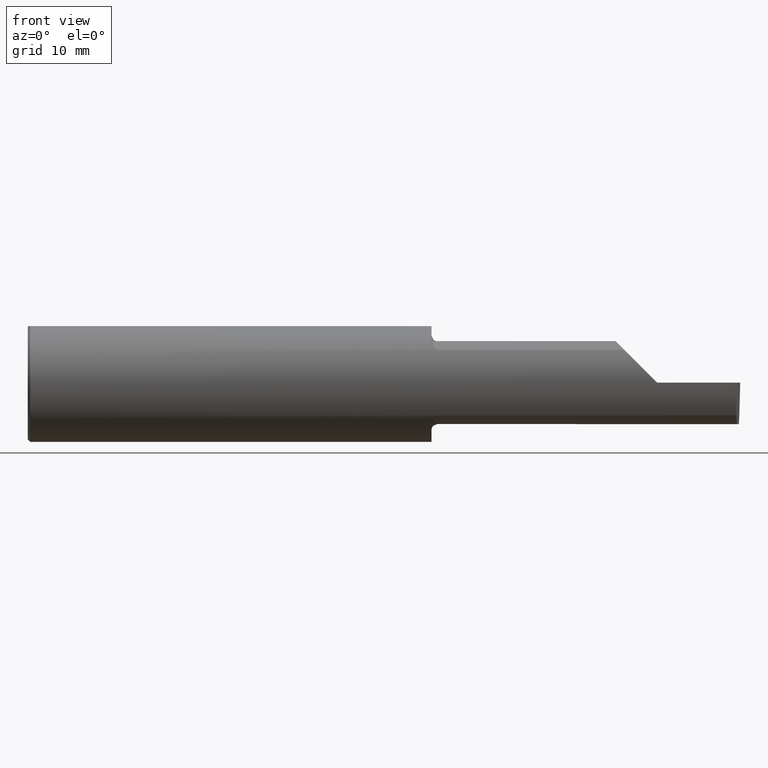
[diagram: clean part render]
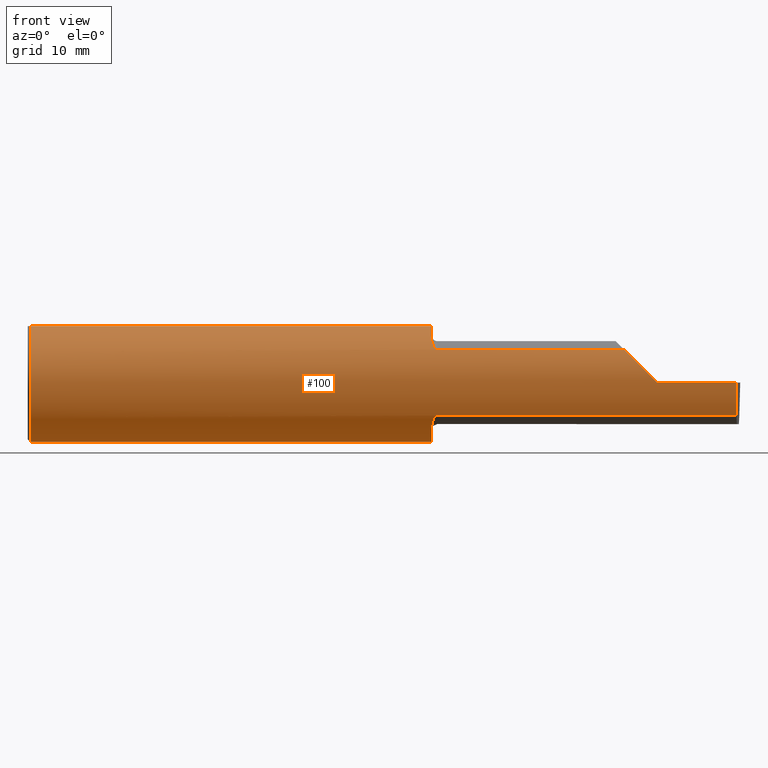
[diagram: same view with one face highlighted and labeled with its STEP entity id]
A machine part, front view. The second image highlights one B-rep face of the part: STEP entity #100.
In plain terms, the highlighted cylindrical surface (partial cylindrical patch) has radius 6.3462 mm, axis along (-1, -0, -0).
Its self-contained STEP definition (entity closure, byte-faithful):
#1 = CARTESIAN_POINT ( 'NONE',  ( 1.700000000000000178, 0.000000000000000000, 0.000000000000000000 ) ) ;
#4 = DIRECTION ( 'NONE',  ( 1.000000000000000000, 0.000000000000000000, 0.000000000000000000 ) ) ;
#16 = LINE ( 'NONE', #559, #353 ) ;
#36 = CARTESIAN_POINT ( 'NONE',  ( 0.009999999999999856226, 0.07650098038587520299, 0.2378499999999998671 ) ) ;
#38 = EDGE_CURVE ( 'NONE', #240, #300, #349, .T. ) ;
#40 = CARTESIAN_POINT ( 'NONE',  ( 1.700000000000000178, -0.1665641037263009827, 0.1863429692936362514 ) ) ;
#42 = CARTESIAN_POINT ( 'NONE',  ( 0.000000000000000000, 0.07650098038587520299, 0.2378499999999998671 ) ) ;
#47 = CARTESIAN_POINT ( 'NONE',  ( 1.700000000000000178, -0.1616050818046603776, 0.1905487340154980724 ) ) ;
#50 = LINE ( 'NONE', #42, #268 ) ;
#52 = CARTESIAN_POINT ( 'NONE',  ( 1.717611663768900954, -0.2061921161193829843, -0.1411075319999378908 ) ) ;
#57 = AXIS2_PLACEMENT_3D ( 'NONE', #1, #323, #503 ) ;
#58 = AXIS2_PLACEMENT_3D ( 'NONE', #706, #4, #702 ) ;
#66 = CARTESIAN_POINT ( 'NONE',  ( 2.650000000000000355, -0.2498499999999999610, 4.286263797015729199E-17 ) ) ;
#78 =( BOUNDED_CURVE ( )  B_SPLINE_CURVE ( 3, ( #456, #669, #695, #153 ),
 .UNSPECIFIED., .F., .T. ) 
 B_SPLINE_CURVE_WITH_KNOTS ( ( 4, 4 ),
 ( 4.712388980384689674, 5.298966915116347209 ),
 .UNSPECIFIED. ) 
 CURVE ( )  GEOMETRIC_REPRESENTATION_ITEM ( )  RATIONAL_B_SPLINE_CURVE ( ( 1.000000000000000000, 0.9715321379117538569, 0.9715321379117538569, 1.000000000000000000 ) ) 
 REPRESENTATION_ITEM ( '' )  );
#80 = DIRECTION ( 'NONE',  ( 1.000000000000000000, 0.000000000000000000, 0.000000000000000000 ) ) ;
#84 = EDGE_CURVE ( 'NONE', #666, #117, #96, .T. ) ;
#89 = VERTEX_POINT ( 'NONE', #91 ) ;
#90 = CARTESIAN_POINT ( 'NONE',  ( 2.983929579294953616, -0.2080850024789288877, -0.1382955322609668858 ) ) ;
#91 = CARTESIAN_POINT ( 'NONE',  ( 1.700000000000000178, 0.07650098038587520299, 0.2378499999999998671 ) ) ;
#96 = LINE ( 'NONE', #642, #182 ) ;
#100 = ADVANCED_FACE ( 'NONE', ( #311 ), #578, .T. ) ;
#101 = CARTESIAN_POINT ( 'NONE',  ( 1.701849548162865045, -0.1805300287242672386, 0.1728462070311780896 ) ) ;
#109 = VERTEX_POINT ( 'NONE', #47 ) ;
#113 = CARTESIAN_POINT ( 'NONE',  ( 0.009999999999999856226, -0.07650098038587520299, 0.2378499999999998671 ) ) ;
#114 = ORIENTED_EDGE ( 'NONE', *, *, #213, .F. ) ;
#117 = VERTEX_POINT ( 'NONE', #630 ) ;
#119 = EDGE_CURVE ( 'NONE', #89, #565, #50, .T. ) ;
#128 = EDGE_CURVE ( 'NONE', #109, #666, #444, .T. ) ;
#135 = CIRCLE ( 'NONE', #57, 0.2498499999999999888 ) ;
#149 = VECTOR ( 'NONE', #475, 39.37007874015748143 ) ;
#151 = DIRECTION ( 'NONE',  ( 1.000000000000000000, 5.818441080112232858E-17, 0.000000000000000000 ) ) ;
#153 = CARTESIAN_POINT ( 'NONE',  ( 2.511704467739032332, -0.2080850024789289432, 0.1382955322609668858 ) ) ;
#154 = DIRECTION ( 'NONE',  ( -1.000000000000000000, -0.000000000000000000, -0.000000000000000000 ) ) ;
#155 = ORIENTED_EDGE ( 'NONE', *, *, #448, .T. ) ;
#160 = CARTESIAN_POINT ( 'NONE',  ( 1.700000000000000178, -0.07650098038587523075, 0.2378499999999998671 ) ) ;
#162 = CARTESIAN_POINT ( 'NONE',  ( 1.699999999999999734, -0.1716188362992553673, -0.1820560320165480472 ) ) ;
#170 = CIRCLE ( 'NONE', #58, 0.2498499999999999888 ) ;
#171 = CARTESIAN_POINT ( 'NONE',  ( 1.714302603425052807, -0.2041009206016212441, -0.1441313430770040649 ) ) ;
#172 = ORIENTED_EDGE ( 'NONE', *, *, #602, .T. ) ;
#176 = ORIENTED_EDGE ( 'NONE', *, *, #552, .F. ) ;
#179 = ORIENTED_EDGE ( 'NONE', *, *, #556, .T. ) ;
#182 = VECTOR ( 'NONE', #530, 39.37007874015748143 ) ;
#184 = ORIENTED_EDGE ( 'NONE', *, *, #84, .F. ) ;
#190 = VERTEX_POINT ( 'NONE', #66 ) ;
#201 = CARTESIAN_POINT ( 'NONE',  ( 1.702968662030529323, -0.1849684355203377317, 0.1680843977756269203 ) ) ;
#202 = CIRCLE ( 'NONE', #577, 0.2498499999999999888 ) ;
#206 = CARTESIAN_POINT ( 'NONE',  ( 2.984886542352623628, -0.2498499999999999888, 0.000000000000000000 ) ) ;
#213 = EDGE_CURVE ( 'NONE', #354, #89, #135, .T. ) ;
#215 = CARTESIAN_POINT ( 'NONE',  ( 1.706147634408388347, -0.1932733126899459919, -0.1584637047788199082 ) ) ;
#221 = CARTESIAN_POINT ( 'NONE',  ( 1.718863362722771182, -0.2068301641248769807, -0.1401678546132362202 ) ) ;
#240 = VERTEX_POINT ( 'NONE', #113 ) ;
#248 =( BOUNDED_CURVE ( )  B_SPLINE_CURVE ( 3, ( #90, #635, #479, #206 ),
 .UNSPECIFIED., .F., .F. ) 
 B_SPLINE_CURVE_WITH_KNOTS ( ( 4, 4 ),
 ( 6.160376845738954721, 6.746954780470613144 ),
 .UNSPECIFIED. ) 
 CURVE ( )  GEOMETRIC_REPRESENTATION_ITEM ( )  RATIONAL_B_SPLINE_CURVE ( ( 1.000000000000000000, 0.9715321379117538569, 0.9715321379117538569, 1.000000000000000000 ) ) 
 REPRESENTATION_ITEM ( '' )  );
#252 = CARTESIAN_POINT ( 'NONE',  ( 4.499279347985562423E-32, -0.2498499999999999610, 3.673940397442054938E-16 ) ) ;
#253 = CARTESIAN_POINT ( 'NONE',  ( 1.700367168219774294, -0.1713400252854603290, 0.1819601557798506408 ) ) ;
#261 = VERTEX_POINT ( 'NONE', #428 ) ;
#268 = VECTOR ( 'NONE', #416, 39.37007874015748143 ) ;
#272 = ORIENTED_EDGE ( 'NONE', *, *, #38, .F. ) ;
#283 = ORIENTED_EDGE ( 'NONE', *, *, #426, .F. ) ;
#285 = CARTESIAN_POINT ( 'NONE',  ( 0.009999999999999856226, 0.000000000000000000, -0.2498499999999999888 ) ) ;
#289 = ORIENTED_EDGE ( 'NONE', *, *, #526, .T. ) ;
#297 = CARTESIAN_POINT ( 'NONE',  ( 0.000000000000000000, -0.07650098038587520299, 0.2378499999999998671 ) ) ;
#299 = CARTESIAN_POINT ( 'NONE',  ( 1.725000000000000089, -0.2080850024789288877, -0.1382955322609669413 ) ) ;
#300 = VERTEX_POINT ( 'NONE', #160 ) ;
#302 = ORIENTED_EDGE ( 'NONE', *, *, #128, .F. ) ;
#303 = CARTESIAN_POINT ( 'NONE',  ( 1.700000000000000178, 0.000000000000000000, 0.000000000000000000 ) ) ;
#306 = EDGE_CURVE ( 'NONE', #407, #354, #434, .T. ) ;
#311 = FACE_OUTER_BOUND ( 'NONE', #497, .T. ) ;
#316 = CARTESIAN_POINT ( 'NONE',  ( 1.717647060162628136, -0.2062109266231181293, 0.1410799729252292800 ) ) ;
#323 = DIRECTION ( 'NONE',  ( 1.000000000000000000, 5.818441080112232858E-17, 0.000000000000000000 ) ) ;
#331 = CARTESIAN_POINT ( 'NONE',  ( 1.725000000000000089, -0.2080850024789289432, 0.1382955322609669135 ) ) ;
#343 = DIRECTION ( 'NONE',  ( -1.000000000000000000, -5.818441080112232858E-17, -0.000000000000000000 ) ) ;
#349 = LINE ( 'NONE', #297, #430 ) ;
#353 = VECTOR ( 'NONE', #343, 39.37007874015748143 ) ;
#354 = VERTEX_POINT ( 'NONE', #678 ) ;
#363 = CARTESIAN_POINT ( 'NONE',  ( 1.712616400345755130, -0.2024684335577101590, 0.1464246884265640591 ) ) ;
#369 = CARTESIAN_POINT ( 'NONE',  ( 1.718876997637615034, -0.2068363917296598964, 0.1401586554522231687 ) ) ;
#372 = DIRECTION ( 'NONE',  ( 0.000000000000000000, 0.000000000000000000, -1.000000000000000000 ) ) ;
#376 = CARTESIAN_POINT ( 'NONE',  ( 1.725000000000000089, -0.2080850024789288877, -0.1382955322609669413 ) ) ;
#387 = CARTESIAN_POINT ( 'NONE',  ( 1.712579853086619419, -0.2024300470081734360, -0.1464774911482686626 ) ) ;
#407 = VERTEX_POINT ( 'NONE', #299 ) ;
#410 = AXIS2_PLACEMENT_3D ( 'NONE', #690, #154, #687 ) ;
#416 = DIRECTION ( 'NONE',  ( -1.000000000000000000, -0.000000000000000000, -0.000000000000000000 ) ) ;
#419 = CARTESIAN_POINT ( 'NONE',  ( 1.721718393013768722, -0.2077830475237239793, 0.1387513848711939002 ) ) ;
#426 = EDGE_CURVE ( 'NONE', #261, #407, #16, .T. ) ;
#428 = CARTESIAN_POINT ( 'NONE',  ( 2.983929579294953616, -0.2080850024789288877, -0.1382955322609668858 ) ) ;
#430 = VECTOR ( 'NONE', #80, 39.37007874015748143 ) ;
#432 = CARTESIAN_POINT ( 'NONE',  ( 1.701385488563270210, -0.1808287530430324752, -0.1728790649396287904 ) ) ;
#434 = B_SPLINE_CURVE_WITH_KNOTS ( 'NONE', 3,
 ( #376, #496, #540, #221, #52, #171, #387, #487, #215, #432, #162, #604 ),
 .UNSPECIFIED., .F., .F.,
 ( 4, 2, 2, 2, 2, 4 ),
 ( 1.964491429042083594E-07, 0.0001260981470478299651, 0.0002519998449527557503, 0.0005038032407626220118, 0.001007410032382354426, 0.002014623615621812316 ),
 .UNSPECIFIED. ) ;
#442 = VERTEX_POINT ( 'NONE', #285 ) ;
#444 = B_SPLINE_CURVE_WITH_KNOTS ( 'NONE', 3,
 ( #637, #40, #253, #101, #201, #693, #640, #363, #483, #316, #369, #419, #584, #575 ),
 .UNSPECIFIED., .F., .F.,
 ( 4, 2, 2, 2, 2, 2, 4 ),
 ( 0.0003834465838148152454, 0.0008781406165086699800, 0.001372834649202524715, 0.001867528681896379449, 0.002114875698243302155, 0.002238549206416757219, 0.002362222714590212283 ),
 .UNSPECIFIED. ) ;
#448 = EDGE_CURVE ( 'NONE', #190, #117, #78, .T. ) ;
#456 = CARTESIAN_POINT ( 'NONE',  ( 2.650000000000000355, -0.2498499999999999610, 4.286263797015729199E-17 ) ) ;
#467 = CIRCLE ( 'NONE', #515, 0.2498499999999999888 ) ;
#469 = DIRECTION ( 'NONE',  ( 1.000000000000000000, 0.000000000000000000, 0.000000000000000000 ) ) ;
#475 = DIRECTION ( 'NONE',  ( -1.000000000000000000, -0.000000000000000000, -0.000000000000000000 ) ) ;
#478 = ORIENTED_EDGE ( 'NONE', *, *, #119, .F. ) ;
#479 = CARTESIAN_POINT ( 'NONE',  ( 2.984020840019027343, -0.2498499999999999888, -0.04956584089959698014 ) ) ;
#483 = CARTESIAN_POINT ( 'NONE',  ( 1.714343523383979440, -0.2041337200786082218, 0.1440846171672514331 ) ) ;
#487 = CARTESIAN_POINT ( 'NONE',  ( 1.708176740666626170, -0.1972027065478071661, -0.1535263573771916135 ) ) ;
#496 = CARTESIAN_POINT ( 'NONE',  ( 1.723318040126430084, -0.2080850024789288599, -0.1382955322609670801 ) ) ;
#497 = EDGE_LOOP ( 'NONE', ( #283, #289, #179, #155, #184, #302, #176, #272, #172, #593, #478, #114, #525 ) ) ;
#503 = DIRECTION ( 'NONE',  ( 0.000000000000000000, 1.000000000000000000, 0.000000000000000000 ) ) ;
#510 = EDGE_CURVE ( 'NONE', #442, #565, #467, .T. ) ;
#515 = AXIS2_PLACEMENT_3D ( 'NONE', #574, #469, #372 ) ;
#523 = DIRECTION ( 'NONE',  ( 0.000000000000000000, 1.000000000000000000, 0.000000000000000000 ) ) ;
#525 = ORIENTED_EDGE ( 'NONE', *, *, #306, .F. ) ;
#526 = EDGE_CURVE ( 'NONE', #261, #709, #248, .T. ) ;
#530 = DIRECTION ( 'NONE',  ( 1.000000000000000000, 5.818441080112232858E-17, 0.000000000000000000 ) ) ;
#540 = CARTESIAN_POINT ( 'NONE',  ( 1.721700027347579320, -0.2077785947292767610, -0.1387580622202826963 ) ) ;
#552 = EDGE_CURVE ( 'NONE', #300, #109, #202, .T. ) ;
#556 = EDGE_CURVE ( 'NONE', #709, #190, #576, .T. ) ;
#559 = CARTESIAN_POINT ( 'NONE',  ( 2.299394315000000244, -0.2080850024789289432, -0.1382955322609668858 ) ) ;
#565 = VERTEX_POINT ( 'NONE', #36 ) ;
#574 = CARTESIAN_POINT ( 'NONE',  ( 0.009999999999999856226, 0.000000000000000000, 0.000000000000000000 ) ) ;
#575 = CARTESIAN_POINT ( 'NONE',  ( 1.725000000000000089, -0.2080850024789289432, 0.1382955322609669135 ) ) ;
#576 = LINE ( 'NONE', #252, #149 ) ;
#577 = AXIS2_PLACEMENT_3D ( 'NONE', #303, #151, #523 ) ;
#578 = CYLINDRICAL_SURFACE ( 'NONE', #410, 0.2498499999999999888 ) ;
#584 = CARTESIAN_POINT ( 'NONE',  ( 1.723329956043142763, -0.2080850024798589215, 0.1382955322595676717 ) ) ;
#593 = ORIENTED_EDGE ( 'NONE', *, *, #510, .T. ) ;
#602 = EDGE_CURVE ( 'NONE', #240, #442, #170, .T. ) ;
#604 = CARTESIAN_POINT ( 'NONE',  ( 1.700000000000000178, -0.1616050818046603776, -0.1905487340154980724 ) ) ;
#630 = CARTESIAN_POINT ( 'NONE',  ( 2.511704467739032332, -0.2080850024789289432, 0.1382955322609668858 ) ) ;
#635 = CARTESIAN_POINT ( 'NONE',  ( 2.983692505346974944, -0.2355204011147992438, -0.09701513151466761853 ) ) ;
#637 = CARTESIAN_POINT ( 'NONE',  ( 1.700000000000000178, -0.1616050818046603776, 0.1905487340154980724 ) ) ;
#640 = CARTESIAN_POINT ( 'NONE',  ( 1.708182335268384477, -0.1972192205116130581, 0.1535061413537211761 ) ) ;
#642 = CARTESIAN_POINT ( 'NONE',  ( 2.299394315000000244, -0.2080850024789289432, 0.1382955322609668858 ) ) ;
#644 = CARTESIAN_POINT ( 'NONE',  ( 2.984886542352623628, -0.2498499999999999888, 0.000000000000000000 ) ) ;
#666 = VERTEX_POINT ( 'NONE', #331 ) ;
#669 = CARTESIAN_POINT ( 'NONE',  ( 2.600434159100402987, -0.2498499999999999610, 0.04956584089959698708 ) ) ;
#678 = CARTESIAN_POINT ( 'NONE',  ( 1.700000000000000178, -0.1616050818046603776, -0.1905487340154980724 ) ) ;
#687 = DIRECTION ( 'NONE',  ( 0.000000000000000000, 0.000000000000000000, 1.000000000000000000 ) ) ;
#690 = CARTESIAN_POINT ( 'NONE',  ( 0.000000000000000000, 0.000000000000000000, 0.000000000000000000 ) ) ;
#693 = CARTESIAN_POINT ( 'NONE',  ( 1.706159563508734101, -0.1933019864360848161, 0.1584298865564832681 ) ) ;
#695 = CARTESIAN_POINT ( 'NONE',  ( 2.552984868485332015, -0.2355204011147991883, 0.09701513151466749363 ) ) ;
#702 = DIRECTION ( 'NONE',  ( 0.000000000000000000, 0.000000000000000000, -1.000000000000000000 ) ) ;
#706 = CARTESIAN_POINT ( 'NONE',  ( 0.009999999999999856226, 0.000000000000000000, 0.000000000000000000 ) ) ;
#709 = VERTEX_POINT ( 'NONE', #644 ) ;